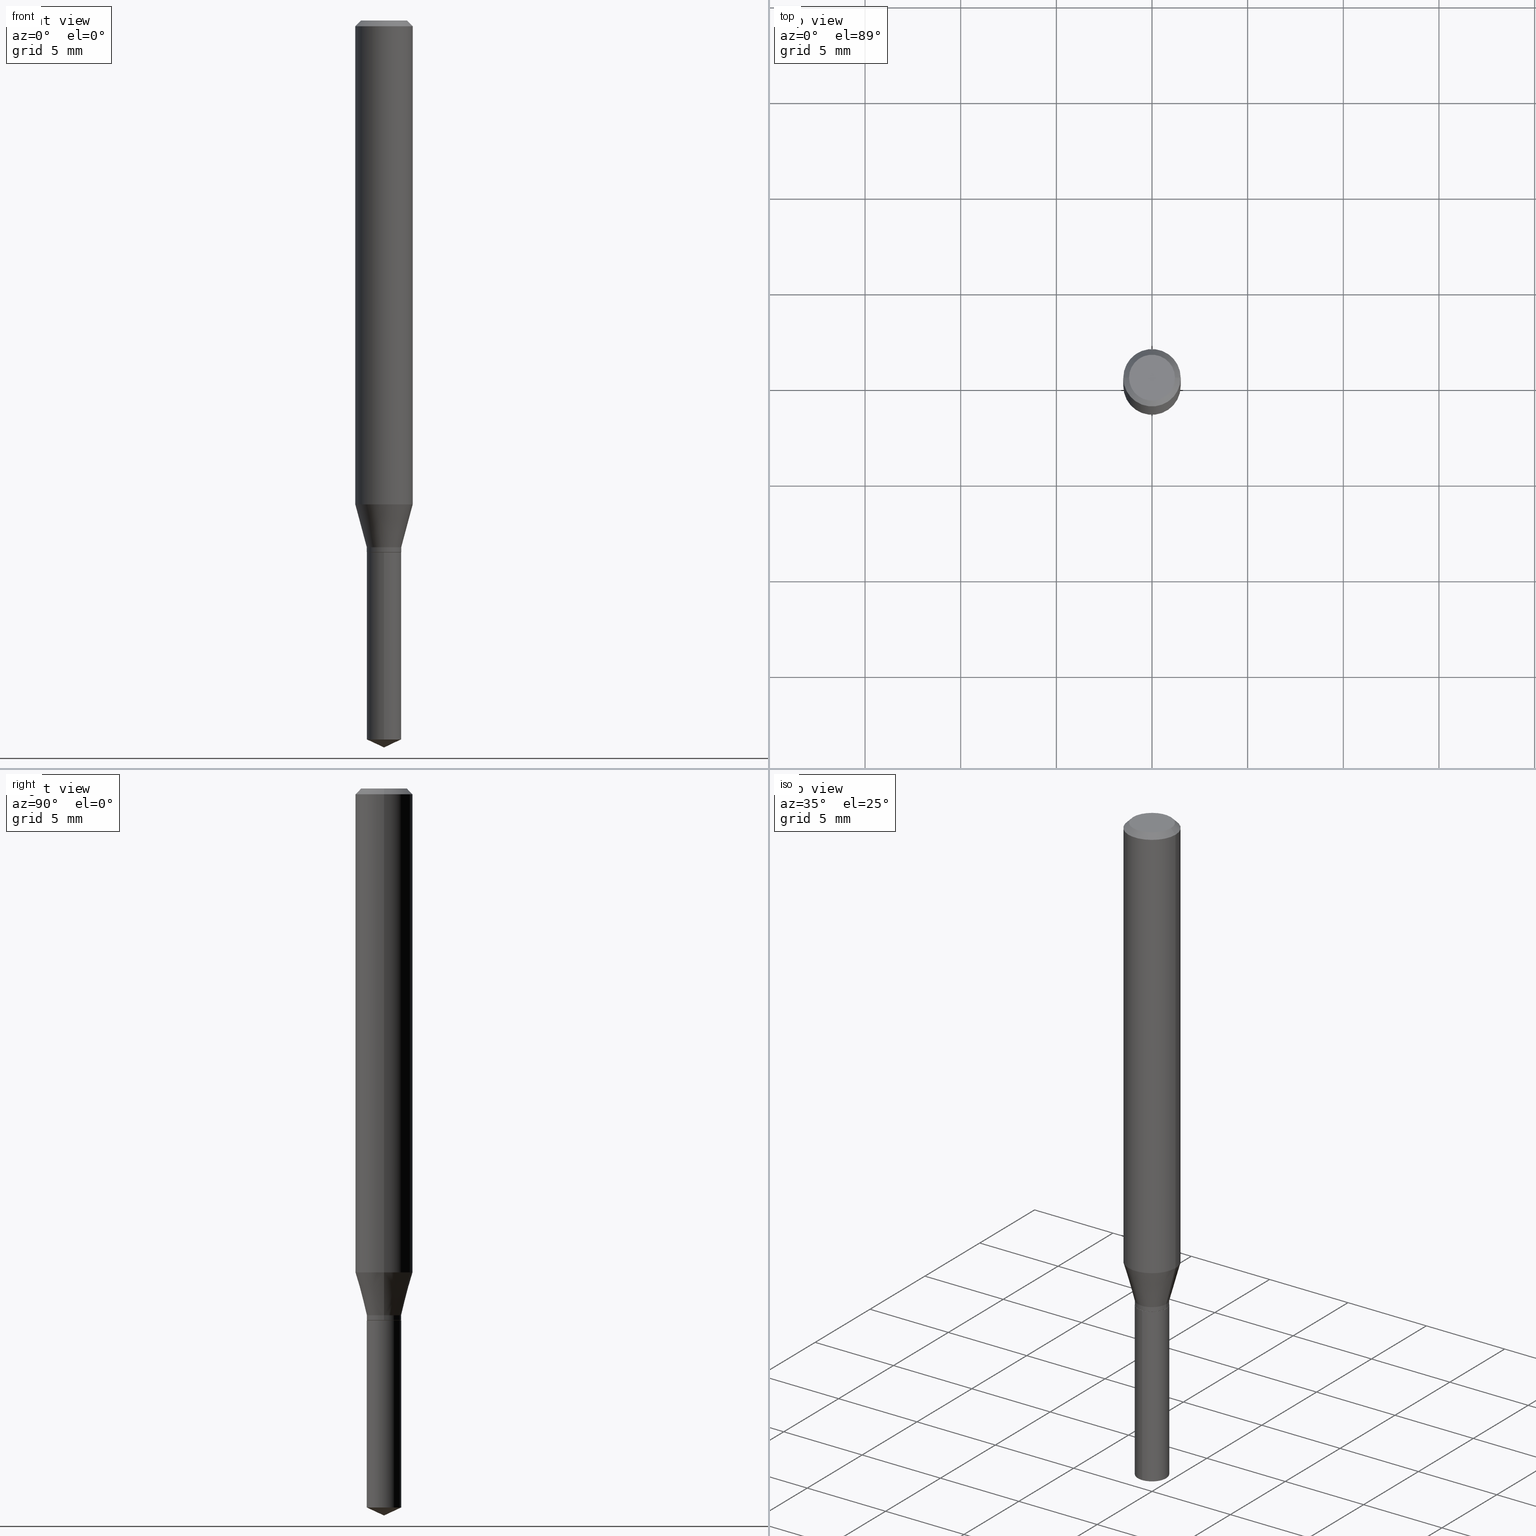
[diagram: canonical four-view strip — front | top / right | iso, engineering-drawing reading convention]
A machine part, canonical four-view strip (front | top / right | iso — engineering-drawing reading convention). The complete STEP part file that produces these views, byte-faithful:
ISO-10303-21;
HEADER;
FILE_DESCRIPTION (( 'STEP AP203' ),
    '1' );
FILE_NAME ('07576.STEP',
    '2024-04-23T23:12:12',
    ( '' ),
    ( '' ),
    'SwSTEP 2.0',
    'SolidWorks 2023',
    '' );
FILE_SCHEMA (( 'CONFIG_CONTROL_DESIGN' ));
ENDSEC;

DATA;
#1 = FACE_OUTER_BOUND ( 'NONE', #221, .T. ) ;
#2 = AXIS2_PLACEMENT_3D ( 'NONE', #101, #136, #131 ) ;
#3 = CONICAL_SURFACE ( 'NONE', #155, 0.03545000000000000234, 0.2617993877991498519 ) ;
#4 = PRODUCT ( '07576', '07576', '', ( #302 ) ) ;
#5 = DATE_AND_TIME ( #229, #186 ) ;
#6 = APPLICATION_PROTOCOL_DEFINITION ( 'international standard', 'config_control_design', 1994, #59 ) ;
#7 = EDGE_CURVE ( 'NONE', #326, #285, #112, .T. ) ;
#8 = EDGE_LOOP ( 'NONE', ( #472, #395, #432, #141 ) ) ;
#9 = AXIS2_PLACEMENT_3D ( 'NONE', #26, #404, #441 ) ;
#10 = EDGE_CURVE ( 'NONE', #330, #471, #254, .T. ) ;
#11 = CC_DESIGN_SECURITY_CLASSIFICATION ( #346, ( #210 ) ) ;
#12 = ORIENTED_EDGE ( 'NONE', *, *, #46, .F. ) ;
#13 = VERTEX_POINT ( 'NONE', #113 ) ;
#14 = ORIENTED_EDGE ( 'NONE', *, *, #277, .T. ) ;
#15 = LINE ( 'NONE', #202, #477 ) ;
#16 = CARTESIAN_POINT ( 'NONE',  ( 2.888098660104664204E-31, -4.123439461173780263E-17, -0.01181000000000007218 ) ) ;
#17 = FACE_OUTER_BOUND ( 'NONE', #138, .T. ) ;
#18 = FACE_OUTER_BOUND ( 'NONE', #470, .T. ) ;
#19 = ORIENTED_EDGE ( 'NONE', *, *, #122, .F. ) ;
#20 = CIRCLE ( 'NONE', #2, 0.03545000000000000234 ) ;
#21 = CARTESIAN_POINT ( 'NONE',  ( 3.658667988020872822E-29, -5.223602213574301462E-15, -1.496099999999999985 ) ) ;
#22 = LOCAL_TIME ( 19, 12, 12.00000000000000000, #357 ) ;
#23 = ORIENTED_EDGE ( 'NONE', *, *, #399, .F. ) ;
#24 = DIRECTION ( 'NONE',  ( 1.000000000000000000, -6.982962677686268288E-15, 0.000000000000000000 ) ) ;
#25 = LINE ( 'NONE', #392, #283 ) ;
#26 = CARTESIAN_POINT ( 'NONE',  ( 3.618241340762121039E-29, -5.165888150350425771E-15, -1.479569393518405329 ) ) ;
#27 = EDGE_CURVE ( 'NONE', #69, #376, #378, .T. ) ;
#28 = PLANE ( 'NONE',  #196 ) ;
#29 = CARTESIAN_POINT ( 'NONE',  ( 8.265746106709734507E-48, -1.180129479067563789E-33, -3.380025165646692144E-19 ) ) ;
#30 = CARTESIAN_POINT ( 'NONE',  ( 4.132873053354867254E-48, -5.900647395337818946E-34, -1.690012582823346072E-19 ) ) ;
#31 = ADVANCED_FACE ( 'NONE', ( #443 ), #251, .F. ) ;
#32 = CC_DESIGN_APPROVAL ( #164, ( #73 ) ) ;
#33 = DIRECTION ( 'NONE',  ( -2.445470214571802116E-29, 3.491479321953280158E-15, 1.000000000000000000 ) ) ;
#34 = CARTESIAN_POINT ( 'NONE',  ( 0.03495000000000000190, -4.065480870948958439E-15, -1.094500000000000028 ) ) ;
#35 = ORIENTED_EDGE ( 'NONE', *, *, #433, .T. ) ;
#36 = DIRECTION ( 'NONE',  ( 1.000000000000000000, -6.982962677686266711E-15, 0.000000000000000000 ) ) ;
#37 = CARTESIAN_POINT ( 'NONE',  ( 0.03545000000000000234, -4.031962650096063203E-15, -1.083899999999999864 ) ) ;
#38 = AXIS2_PLACEMENT_3D ( 'NONE', #455, #118, #305 ) ;
#39 = CC_DESIGN_APPROVAL ( #449, ( #346 ) ) ;
#40 =( LENGTH_UNIT ( ) NAMED_UNIT ( * ) SI_UNIT ( $, .METRE. ) );
#41 = ORIENTED_EDGE ( 'NONE', *, *, #329, .T. ) ;
#42 = CARTESIAN_POINT ( 'NONE',  ( 2.676565608369631794E-29, -3.821426325363822773E-15, -1.094499999999999806 ) ) ;
#43 = ADVANCED_FACE ( 'NONE', ( #367 ), #350, .T. ) ;
#44 = CC_DESIGN_DATE_AND_TIME_ASSIGNMENT ( #151, #424, ( #73 ) ) ;
#45 = ORIENTED_EDGE ( 'NONE', *, *, #339, .F. ) ;
#46 = EDGE_CURVE ( 'NONE', #273, #463, #464, .T. ) ;
#47 = CIRCLE ( 'NONE', #121, 0.05905000000000011628 ) ;
#48 = DATE_AND_TIME ( #380, #338 ) ;
#49 = CALENDAR_DATE ( 2024, 23, 4 ) ;
#50 = APPROVAL_STATUS ( 'not_yet_approved' ) ;
#51 = AXIS2_PLACEMENT_3D ( 'NONE', #413, #79, #147 ) ;
#52 = CARTESIAN_POINT ( 'NONE',  ( 2.435255552565086005E-29, -3.476899519466391057E-15, -0.9958236009413741208 ) ) ;
#53 = DIRECTION ( 'NONE',  ( -2.445470214571802116E-29, 3.491479321953280158E-15, 1.000000000000000000 ) ) ;
#54 = VERTEX_POINT ( 'NONE', #336 ) ;
#55 = CARTESIAN_POINT ( 'NONE',  ( 0.04724000000000000421, -3.852183633974369345E-16, -3.380025165621689721E-19 ) ) ;
#56 = EDGE_LOOP ( 'NONE', ( #368, #99 ) ) ;
#57 = DIRECTION ( 'NONE',  ( 2.445468806185136597E-29, -3.491481338843145583E-15, -1.000000000000000000 ) ) ;
#58 = DIRECTION ( 'NONE',  ( -2.445468806185136877E-29, 3.491481338843145188E-15, 1.000000000000000000 ) ) ;
#59 = APPLICATION_CONTEXT ( 'configuration controlled 3d designs of mechanical parts and assemblies' ) ;
#60 = AXIS2_PLACEMENT_3D ( 'NONE', #322, #159, #126 ) ;
#61 = LINE ( 'NONE', #328, #139 ) ;
#62 = CIRCLE ( 'NONE', #438, 0.05904999999999999832 ) ;
#63 = CARTESIAN_POINT ( 'NONE',  ( 0.05905000000000006077, -4.123439461173744764E-16, 2.879382386107503023E-30 ) ) ;
#64 = CC_DESIGN_PERSON_AND_ORGANIZATION_ASSIGNMENT ( #193, #235, ( #346 ) ) ;
#65 = DIRECTION ( 'NONE',  ( -1.000000000000000000, 6.982962677686265922E-15, -4.876176775795935793E-29 ) ) ;
#66 = DIRECTION ( 'NONE',  ( -1.000000000000000000, 6.982962677686266711E-15, 0.000000000000000000 ) ) ;
#67 = CARTESIAN_POINT ( 'NONE',  ( -0.03495000000000000190, -3.570442412041556297E-15, -1.094500000000000028 ) ) ;
#68 = EDGE_CURVE ( 'NONE', #225, #330, #106, .T. ) ;
#69 = VERTEX_POINT ( 'NONE', #67 ) ;
#70 = DIRECTION ( 'NONE',  ( -0.2588190451025211281, 5.211531920934547886E-15, 0.9659258262890679791 ) ) ;
#71 = CARTESIAN_POINT ( 'NONE',  ( -0.05905000000000006077, 4.195754854663395916E-16, -2.904631170795524694E-30 ) ) ;
#72 = CARTESIAN_POINT ( 'NONE',  ( 2.650643639024069224E-29, -3.784416623172084531E-15, -1.083899999999999864 ) ) ;
#73 = PRODUCT_DEFINITION ( 'UNKNOWN', '', #210, #108 ) ;
#74 = CARTESIAN_POINT ( 'NONE',  ( 2.676565608369632355E-29, -3.821426325363822773E-15, -1.094500000000000028 ) ) ;
#75 = CIRCLE ( 'NONE', #116, 0.03545000000000000234 ) ;
#76 = DIRECTION ( 'NONE',  ( -2.445468806185136597E-29, 3.491481338843145583E-15, 1.000000000000000000 ) ) ;
#77 = ORIENTED_EDGE ( 'NONE', *, *, #212, .T. ) ;
#78 = DIRECTION ( 'NONE',  ( -2.445468806185136597E-29, 3.491481338843145583E-15, 1.000000000000000000 ) ) ;
#79 = DIRECTION ( 'NONE',  ( 0.000000000000000000, 0.000000000000000000, 1.000000000000000000 ) ) ;
#80 = EDGE_LOOP ( 'NONE', ( #35, #476, #263, #355 ) ) ;
#81 = EDGE_CURVE ( 'NONE', #376, #330, #209, .T. ) ;
#82 = CARTESIAN_POINT ( 'NONE',  ( -0.03545000000000000234, 2.518873998269555325E-16, -1.743762489495364089E-30 ) ) ;
#83 = PLANE ( 'NONE',  #181 ) ;
#84 = ORIENTED_EDGE ( 'NONE', *, *, #212, .F. ) ;
#85 = AXIS2_PLACEMENT_3D ( 'NONE', #137, #264, #414 ) ;
#86 = CARTESIAN_POINT ( 'NONE',  ( 2.518873998269915736E-16, 0.03544999999999481899, -1.479569393518405329 ) ) ;
#87 = CARTESIAN_POINT ( 'NONE',  ( -0.05905000000000011628, -3.057324034000050775E-15, -0.9958236009413741208 ) ) ;
#88 = PERSON_AND_ORGANIZATION ( #143, #325 ) ;
#89 = COORDINATED_UNIVERSAL_TIME_OFFSET ( 5, 0, .BEHIND. ) ;
#90 = CIRCLE ( 'NONE', #458, 0.03545000000000000234 ) ;
#91 = ORIENTED_EDGE ( 'NONE', *, *, #429, .T. ) ;
#92 = CC_DESIGN_PERSON_AND_ORGANIZATION_ASSIGNMENT ( #388, #384, ( #210 ) ) ;
#93 = APPROVAL_STATUS ( 'not_yet_approved' ) ;
#94 = CARTESIAN_POINT ( 'NONE',  ( 0.03545000000000000234, -4.067226611618379153E-15, -1.093999999999999861 ) ) ;
#95 = PERSON_AND_ORGANIZATION ( #143, #325 ) ;
#96 = CONICAL_SURFACE ( 'NONE', #372, 0.03545000000000000234, 0.2617993877991498519 ) ;
#97 = VECTOR ( 'NONE', #243, 39.37007874015748143 ) ;
#98 = LINE ( 'NONE', #393, #97 ) ;
#99 = ORIENTED_EDGE ( 'NONE', *, *, #27, .F. ) ;
#100 = ORIENTED_EDGE ( 'NONE', *, *, #7, .T. ) ;
#101 = CARTESIAN_POINT ( 'NONE',  ( 2.675342873966538993E-29, -3.819680584694400481E-15, -1.093999999999999861 ) ) ;
#102 = ORIENTED_EDGE ( 'NONE', *, *, #160, .T. ) ;
#103 = CYLINDRICAL_SURFACE ( 'NONE', #261, 0.03545000000000000234 ) ;
#104 = ORIENTED_EDGE ( 'NONE', *, *, #290, .T. ) ;
#105 = DIRECTION ( 'NONE',  ( -2.445468806185136877E-29, 3.491481338843145188E-15, 1.000000000000000000 ) ) ;
#106 = CIRCLE ( 'NONE', #291, 0.03545000000000000234 ) ;
#107 = LOCAL_TIME ( 19, 12, 12.00000000000000000, #271 ) ;
#108 = DESIGN_CONTEXT ( 'detailed design', #59, 'design' ) ;
#109 = EDGE_CURVE ( 'NONE', #244, #471, #398, .T. ) ;
#110 = DIRECTION ( 'NONE',  ( -2.445468806185136597E-29, 3.491481338843145583E-15, 1.000000000000000000 ) ) ;
#111 = ORIENTED_EDGE ( 'NONE', *, *, #433, .F. ) ;
#112 = LINE ( 'NONE', #71, #217 ) ;
#113 = CARTESIAN_POINT ( 'NONE',  ( -0.04724000000000000421, 3.504923541997677355E-16, -3.380025165670481712E-19 ) ) ;
#114 = AXIS2_PLACEMENT_3D ( 'NONE', #204, #307, #265 ) ;
#115 = VERTEX_POINT ( 'NONE', #295 ) ;
#116 = AXIS2_PLACEMENT_3D ( 'NONE', #161, #317, #230 ) ;
#117 = DIRECTION ( 'NONE',  ( -2.445468806185136877E-29, 3.491481338843145188E-15, 1.000000000000000000 ) ) ;
#118 = DIRECTION ( 'NONE',  ( -2.445468806185136597E-29, 3.491481338843145583E-15, 1.000000000000000000 ) ) ;
#119 = ADVANCED_FACE ( 'NONE', ( #407 ), #381, .T. ) ;
#120 = DIRECTION ( 'NONE',  ( -2.445468806185136877E-29, 3.491481338843145188E-15, 1.000000000000000000 ) ) ;
#121 = AXIS2_PLACEMENT_3D ( 'NONE', #207, #78, #184 ) ;
#122 = EDGE_CURVE ( 'NONE', #127, #13, #356, .T. ) ;
#123 = APPROVAL_DATE_TIME ( #460, #164 ) ;
#124 = PERSON_AND_ORGANIZATION_ROLE ( 'creator' ) ;
#125 = APPROVAL_PERSON_ORGANIZATION ( #278, #449, #194 ) ;
#126 = DIRECTION ( 'NONE',  ( 1.000000000000000000, -6.982962677686266711E-15, 4.876176775795935793E-29 ) ) ;
#127 = VERTEX_POINT ( 'NONE', #55 ) ;
#128 = ORIENTED_EDGE ( 'NONE', *, *, #456, .T. ) ;
#129 = ORIENTED_EDGE ( 'NONE', *, *, #152, .T. ) ;
#130 = VERTEX_POINT ( 'NONE', #21 ) ;
#131 = DIRECTION ( 'NONE',  ( 1.000000000000000000, -6.982962677686268288E-15, 0.000000000000000000 ) ) ;
#132 = EDGE_LOOP ( 'NONE', ( #19, #77, #128, #304 ) ) ;
#133 = VECTOR ( 'NONE', #117, 39.37007874015748143 ) ;
#134 = DIRECTION ( 'NONE',  ( -2.445468806185136597E-29, 3.491481338843145583E-15, 1.000000000000000000 ) ) ;
#135 = EDGE_LOOP ( 'NONE', ( #163, #41 ) ) ;
#136 = DIRECTION ( 'NONE',  ( -2.445468806185136597E-29, 3.491481338843145583E-15, 1.000000000000000000 ) ) ;
#137 = CARTESIAN_POINT ( 'NONE',  ( 2.676565608369631794E-29, -3.821426325363822773E-15, -1.094499999999999806 ) ) ;
#138 = EDGE_LOOP ( 'NONE', ( #23, #255, #91, #488 ) ) ;
#139 = VECTOR ( 'NONE', #324, 39.37007874015748143 ) ;
#140 = DIRECTION ( 'NONE',  ( 1.000000000000000000, -6.982962677686268288E-15, 0.000000000000000000 ) ) ;
#141 = ORIENTED_EDGE ( 'NONE', *, *, #68, .F. ) ;
#142 = DIRECTION ( 'NONE',  ( -2.445468806185136597E-29, 3.491481338843145583E-15, 1.000000000000000000 ) ) ;
#143 = PERSON ( 'UNSPECIFIED', 'UNSPECIFIED', 'UNSPECIFIED', ('UNSPECIFIED'), ('UNSPECIFIED'), ('UNSPECIFIED') ) ;
#144 = CARTESIAN_POINT ( 'NONE',  ( 0.03545000000000000234, -2.475460269239781793E-16, 1.728604667019659440E-30 ) ) ;
#145 = AXIS2_PLACEMENT_3D ( 'NONE', #363, #172, #247 ) ;
#146 = ORIENTED_EDGE ( 'NONE', *, *, #415, .F. ) ;
#147 = DIRECTION ( 'NONE',  ( 1.000000000000000000, 0.000000000000000000, 0.000000000000000000 ) ) ;
#148 = EDGE_CURVE ( 'NONE', #130, #273, #478, .T. ) ;
#149 = VERTEX_POINT ( 'NONE', #473 ) ;
#150 = ADVANCED_FACE ( 'NONE', ( #205 ), #275, .T. ) ;
#151 = DATE_AND_TIME ( #314, #107 ) ;
#152 = EDGE_CURVE ( 'NONE', #13, #285, #98, .T. ) ;
#153 = CONICAL_SURFACE ( 'NONE', #241, 0.05904999999999999832, 0.7853981633974452814 ) ;
#154 = DIRECTION ( 'NONE',  ( -2.445470214571802116E-29, 3.491479321953280158E-15, 1.000000000000000000 ) ) ;
#155 = AXIS2_PLACEMENT_3D ( 'NONE', #469, #240, #284 ) ;
#156 = DIRECTION ( 'NONE',  ( -6.982962677686265922E-15, -1.000000000000000000, 3.853100132107564390E-15 ) ) ;
#157 = DIRECTION ( 'NONE',  ( 1.000000000000000000, -6.982962677686266711E-15, 4.876185090822587894E-29 ) ) ;
#158 = PERSON_AND_ORGANIZATION_ROLE ( 'design_owner' ) ;
#159 = DIRECTION ( 'NONE',  ( -2.445468806185136597E-29, 3.491481338843145583E-15, 1.000000000000000000 ) ) ;
#160 = EDGE_CURVE ( 'NONE', #330, #225, #20, .T. ) ;
#161 = CARTESIAN_POINT ( 'NONE',  ( 2.676565608369631794E-29, -3.821426325363822773E-15, -1.094499999999999806 ) ) ;
#162 = VECTOR ( 'NONE', #239, 39.37007874015748143 ) ;
#163 = ORIENTED_EDGE ( 'NONE', *, *, #347, .T. ) ;
#164 = APPROVAL ( #50, 'UNSPECIFIED' ) ;
#165 = ORIENTED_EDGE ( 'NONE', *, *, #148, .F. ) ;
#166 = DIRECTION ( 'NONE',  ( -1.000000000000000000, 6.982962677686266711E-15, 0.000000000000000000 ) ) ;
#167 = DIRECTION ( 'NONE',  ( -2.445468806185136597E-29, 3.491481338843145583E-15, 1.000000000000000000 ) ) ;
#168 = CARTESIAN_POINT ( 'NONE',  ( 3.658664905062460986E-29, -5.223606628546217219E-15, -1.496099999999999985 ) ) ;
#169 = AXIS2_PLACEMENT_3D ( 'NONE', #214, #486, #140 ) ;
#170 = ORIENTED_EDGE ( 'NONE', *, *, #248, .T. ) ;
#171 = AXIS2_PLACEMENT_3D ( 'NONE', #306, #425, #394 ) ;
#172 = DIRECTION ( 'NONE',  ( -2.445468806185136597E-29, 3.491481338843145583E-15, 1.000000000000000000 ) ) ;
#173 = ORIENTED_EDGE ( 'NONE', *, *, #456, .F. ) ;
#174 = ORIENTED_EDGE ( 'NONE', *, *, #385, .T. ) ;
#175 = FACE_OUTER_BOUND ( 'NONE', #387, .T. ) ;
#176 = CARTESIAN_POINT ( 'NONE',  ( -9.261968845786000133E-28, 1.322362114038720264E-13, 37.87397874015748300 ) ) ;
#177 = DIRECTION ( 'NONE',  ( 2.445470214571801836E-29, -3.491479321953280158E-15, -1.000000000000000000 ) ) ;
#178 = DIRECTION ( 'NONE',  ( -2.445468806185136597E-29, 3.491481338843145583E-15, 1.000000000000000000 ) ) ;
#179 = DIRECTION ( 'NONE',  ( -2.445468806185136597E-29, 3.491481338843145583E-15, 1.000000000000000000 ) ) ;
#180 = CONICAL_SURFACE ( 'NONE', #423, 0.05904999999999999832, 0.7853981633974452814 ) ;
#181 = AXIS2_PLACEMENT_3D ( 'NONE', #268, #377, #260 ) ;
#182 = DIRECTION ( 'NONE',  ( -6.982962677686269077E-15, -1.000000000000000000, 3.520397390770426654E-15 ) ) ;
#183 = DIRECTION ( 'NONE',  ( -2.445468806185136597E-29, 3.491481338843145583E-15, 1.000000000000000000 ) ) ;
#184 = DIRECTION ( 'NONE',  ( 1.000000000000000000, -6.982962677686266711E-15, 0.000000000000000000 ) ) ;
#185 = APPLICATION_PROTOCOL_DEFINITION ( 'international standard', 'config_control_design', 1994, #282 ) ;
#186 = LOCAL_TIME ( 19, 12, 12.00000000000000000, #309 ) ;
#187 = LINE ( 'NONE', #226, #465 ) ;
#188 = EDGE_CURVE ( 'NONE', #273, #54, #61, .T. ) ;
#189 = SHAPE_DEFINITION_REPRESENTATION ( #417, #353 ) ;
#190 = AXIS2_PLACEMENT_3D ( 'NONE', #176, #292, #370 ) ;
#191 = AXIS2_PLACEMENT_3D ( 'NONE', #29, #178, #334 ) ;
#192 = DATE_TIME_ROLE ( 'classification_date' ) ;
#193 = PERSON_AND_ORGANIZATION ( #143, #325 ) ;
#194 = APPROVAL_ROLE ( '' ) ;
#195 = APPROVAL_ROLE ( '' ) ;
#196 = AXIS2_PLACEMENT_3D ( 'NONE', #444, #177, #447 ) ;
#197 = ADVANCED_FACE ( 'NONE', ( #289 ), #281, .T. ) ;
#198 = CARTESIAN_POINT ( 'NONE',  ( -0.03545000000000000234, -3.550161204106286727E-15, -1.093999999999999861 ) ) ;
#199 = DIRECTION ( 'NONE',  ( -6.982962677686265922E-15, -1.000000000000000000, 0.000000000000000000 ) ) ;
#200 = EDGE_LOOP ( 'NONE', ( #315, #397, #483, #280 ) ) ;
#201 = ORIENTED_EDGE ( 'NONE', *, *, #10, .T. ) ;
#202 = CARTESIAN_POINT ( 'NONE',  ( -0.03495000000000000190, -3.573091639215668287E-15, -1.094500000000000028 ) ) ;
#203 = EDGE_CURVE ( 'NONE', #69, #225, #15, .T. ) ;
#204 = CARTESIAN_POINT ( 'NONE',  ( 0.000000000000000000, 0.000000000000000000, 0.000000000000000000 ) ) ;
#205 = FACE_OUTER_BOUND ( 'NONE', #200, .T. ) ;
#206 = UNCERTAINTY_MEASURE_WITH_UNIT (LENGTH_MEASURE( 1.000000000000000082E-05 ), #223, 'distance_accuracy_value', 'NONE');
#207 = CARTESIAN_POINT ( 'NONE',  ( 2.435255552565086005E-29, -3.476899519466391057E-15, -0.9958236009413741208 ) ) ;
#208 = AXIS2_PLACEMENT_3D ( 'NONE', #52, #442, #361 ) ;
#209 = LINE ( 'NONE', #213, #364 ) ;
#210 = PRODUCT_DEFINITION_FORMATION_WITH_SPECIFIED_SOURCE ( 'ANY', '', #4, .NOT_KNOWN. ) ;
#211 = DIRECTION ( 'NONE',  ( 0.7071067811865453523, -7.319954787623248157E-15, -0.7071067811865496822 ) ) ;
#212 = EDGE_CURVE ( 'NONE', #127, #149, #25, .T. ) ;
#213 = CARTESIAN_POINT ( 'NONE',  ( 0.03495000000000000190, -4.065480870948958439E-15, -1.094500000000000028 ) ) ;
#214 = CARTESIAN_POINT ( 'NONE',  ( 2.650643639024069224E-29, -3.784416623172084531E-15, -1.083899999999999864 ) ) ;
#215 = CYLINDRICAL_SURFACE ( 'NONE', #382, 0.03545000000000000234 ) ;
#216 = DIRECTION ( 'NONE',  ( 1.000000000000000000, -6.982962677686268288E-15, 0.000000000000000000 ) ) ;
#217 = VECTOR ( 'NONE', #105, 39.37007874015748143 ) ;
#218 = DIRECTION ( 'NONE',  ( 2.445468806185136597E-29, -3.491481338843145583E-15, -1.000000000000000000 ) ) ;
#219 = DIRECTION ( 'NONE',  ( 1.000000000000000000, -6.982962677686267499E-15, 0.000000000000000000 ) ) ;
#220 = EDGE_CURVE ( 'NONE', #115, #326, #428, .T. ) ;
#221 = EDGE_LOOP ( 'NONE', ( #454, #327, #201, #451 ) ) ;
#222 = CARTESIAN_POINT ( 'NONE',  ( -2.475460269239418917E-16, -0.03545000000000515794, -1.479569393518405329 ) ) ;
#223 =( CONVERSION_BASED_UNIT ( 'INCH', #296 ) LENGTH_UNIT ( ) NAMED_UNIT ( #461 ) );
#224 = ORIENTED_EDGE ( 'NONE', *, *, #188, .F. ) ;
#225 = VERTEX_POINT ( 'NONE', #198 ) ;
#226 = CARTESIAN_POINT ( 'NONE',  ( 2.518873998269822552E-16, 0.03544999999999617901, -1.094500000000000028 ) ) ;
#227 = ADVANCED_FACE ( 'NONE', ( #18 ), #103, .T. ) ;
#228 = FACE_OUTER_BOUND ( 'NONE', #8, .T. ) ;
#229 = CALENDAR_DATE ( 2024, 23, 4 ) ;
#230 = DIRECTION ( 'NONE',  ( -6.982962677686265922E-15, -1.000000000000000000, 3.853100132107564390E-15 ) ) ;
#231 = COORDINATED_UNIVERSAL_TIME_OFFSET ( 5, 0, .BEHIND. ) ;
#232 = AXIS2_PLACEMENT_3D ( 'NONE', #30, #401, #65 ) ;
#233 = APPROVAL_PERSON_ORGANIZATION ( #313, #164, #195 ) ;
#234 = ADVANCED_FACE ( 'NONE', ( #440 ), #180, .T. ) ;
#235 = PERSON_AND_ORGANIZATION_ROLE ( 'classification_officer' ) ;
#236 = ORIENTED_EDGE ( 'NONE', *, *, #220, .T. ) ;
#237 = DATE_AND_TIME ( #49, #400 ) ;
#238 = ADVANCED_FACE ( 'NONE', ( #175 ), #390, .T. ) ;
#239 = DIRECTION ( 'NONE',  ( -6.328713451373384367E-15, -0.9063077870366504918, 0.4226182617406983866 ) ) ;
#240 = DIRECTION ( 'NONE',  ( -2.445468806185136597E-29, 3.491481338843145583E-15, 1.000000000000000000 ) ) ;
#241 = AXIS2_PLACEMENT_3D ( 'NONE', #258, #218, #66 ) ;
#242 = CC_DESIGN_PERSON_AND_ORGANIZATION_ASSIGNMENT ( #430, #158, ( #4 ) ) ;
#243 = DIRECTION ( 'NONE',  ( -0.7071067811865453523, 2.468850131082234184E-15, -0.7071067811865496822 ) ) ;
#244 = VERTEX_POINT ( 'NONE', #276 ) ;
#245 = CARTESIAN_POINT ( 'NONE',  ( 2.888098660104664204E-31, -4.123439461173780263E-17, -0.01181000000000007218 ) ) ;
#246 = EDGE_LOOP ( 'NONE', ( #174, #389 ) ) ;
#247 = DIRECTION ( 'NONE',  ( 1.000000000000000000, -6.982962677686266711E-15, 4.876176775795935793E-29 ) ) ;
#248 = EDGE_CURVE ( 'NONE', #326, #115, #47, .T. ) ;
#249 = FACE_OUTER_BOUND ( 'NONE', #480, .T. ) ;
#250 = CIRCLE ( 'NONE', #38, 0.05904999999999999832 ) ;
#251 = PLANE ( 'NONE',  #232 ) ;
#252 = EDGE_LOOP ( 'NONE', ( #165, #474, #12 ) ) ;
#253 = CC_DESIGN_APPROVAL ( #383, ( #210 ) ) ;
#254 = LINE ( 'NONE', #144, #310 ) ;
#255 = ORIENTED_EDGE ( 'NONE', *, *, #109, .T. ) ;
#256 = CARTESIAN_POINT ( 'NONE',  ( -0.03545000000000000234, -3.532529223345129146E-15, -1.083899999999999864 ) ) ;
#257 = CARTESIAN_POINT ( 'NONE',  ( 2.675342873966538993E-29, -3.819680584694400481E-15, -1.093999999999999861 ) ) ;
#258 = CARTESIAN_POINT ( 'NONE',  ( 2.888098660104664204E-31, -4.123439461173780263E-17, -0.01181000000000007218 ) ) ;
#259 = CARTESIAN_POINT ( 'NONE',  ( 2.676565608369632355E-29, -3.821426325363822773E-15, -1.094500000000000028 ) ) ;
#260 = DIRECTION ( 'NONE',  ( 1.000000000000000000, -6.982962677686265922E-15, 4.876176775795935793E-29 ) ) ;
#261 = AXIS2_PLACEMENT_3D ( 'NONE', #436, #134, #369 ) ;
#262 = AXIS2_PLACEMENT_3D ( 'NONE', #484, #53, #199 ) ;
#263 = ORIENTED_EDGE ( 'NONE', *, *, #220, .F. ) ;
#264 = DIRECTION ( 'NONE',  ( -2.445470214571802116E-29, 3.491479321953280158E-15, 1.000000000000000000 ) ) ;
#265 = DIRECTION ( 'NONE',  ( 1.000000000000000000, -6.982962677686266711E-15, 4.876176775795935793E-29 ) ) ;
#266 = EDGE_LOOP ( 'NONE', ( #287, #323, #375, #362 ) ) ;
#267 = EDGE_CURVE ( 'NONE', #376, #69, #345, .T. ) ;
#268 = CARTESIAN_POINT ( 'NONE',  ( -3.104317707093147810E-30, -8.098976581537694552E-15, -1.094500000000000028 ) ) ;
#269 = AXIS2_PLACEMENT_3D ( 'NONE', #340, #142, #157 ) ;
#270 = CC_DESIGN_DATE_AND_TIME_ASSIGNMENT ( #48, #192, ( #346 ) ) ;
#271 = COORDINATED_UNIVERSAL_TIME_OFFSET ( 5, 0, .BEHIND. ) ;
#272 = PERSON_AND_ORGANIZATION_ROLE ( 'creator' ) ;
#273 = VERTEX_POINT ( 'NONE', #222 ) ;
#274 = ADVANCED_FACE ( 'NONE', ( #490 ), #96, .T. ) ;
#275 = CONICAL_SURFACE ( 'NONE', #435, 0.03495000000000000190, 0.7853981633972775267 ) ;
#276 = CARTESIAN_POINT ( 'NONE',  ( -0.03545000000000000234, -3.550161204106286727E-15, -1.083899999999999864 ) ) ;
#277 = EDGE_CURVE ( 'NONE', #285, #149, #250, .T. ) ;
#278 = PERSON_AND_ORGANIZATION ( #143, #325 ) ;
#279 = ORIENTED_EDGE ( 'NONE', *, *, #385, .F. ) ;
#280 = ORIENTED_EDGE ( 'NONE', *, *, #81, .F. ) ;
#281 = CYLINDRICAL_SURFACE ( 'NONE', #145, 0.05905000000000006077 ) ;
#282 = APPLICATION_CONTEXT ( 'configuration controlled 3d designs of mechanical parts and assemblies' ) ;
#283 = VECTOR ( 'NONE', #211, 39.37007874015748143 ) ;
#284 = DIRECTION ( 'NONE',  ( 1.000000000000000000, -6.982962677686268288E-15, 0.000000000000000000 ) ) ;
#285 = VERTEX_POINT ( 'NONE', #420 ) ;
#286 = DIRECTION ( 'NONE',  ( 1.000000000000000000, -6.982962677686267499E-15, 0.000000000000000000 ) ) ;
#287 = ORIENTED_EDGE ( 'NONE', *, *, #485, .F. ) ;
#288 = EDGE_LOOP ( 'NONE', ( #45, #402, #427 ) ) ;
#289 = FACE_OUTER_BOUND ( 'NONE', #448, .T. ) ;
#290 = EDGE_CURVE ( 'NONE', #225, #244, #406, .T. ) ;
#291 = AXIS2_PLACEMENT_3D ( 'NONE', #257, #183, #216 ) ;
#292 = DIRECTION ( 'NONE',  ( -2.445470214571802116E-29, 3.491479321953280158E-15, 1.000000000000000000 ) ) ;
#293 = ORIENTED_EDGE ( 'NONE', *, *, #10, .F. ) ;
#294 = LINE ( 'NONE', #256, #311 ) ;
#295 = CARTESIAN_POINT ( 'NONE',  ( 0.05905000000000011628, -3.889243465583765977E-15, -0.9958236009413741208 ) ) ;
#296 = LENGTH_MEASURE_WITH_UNIT ( LENGTH_MEASURE( 0.02539999999999999897 ), #40 );
#297 = ADVANCED_FACE ( 'NONE', ( #1 ), #333, .T. ) ;
#298 = DIRECTION ( 'NONE',  ( 1.000000000000000000, -6.982962677686267499E-15, 0.000000000000000000 ) ) ;
#299 = AXIS2_PLACEMENT_3D ( 'NONE', #259, #179, #219 ) ;
#300 = APPROVAL_PERSON_ORGANIZATION ( #88, #383, #386 ) ;
#301 = CARTESIAN_POINT ( 'NONE',  ( 2.650643639024069224E-29, -3.784416623172084531E-15, -1.083899999999999864 ) ) ;
#302 = MECHANICAL_CONTEXT ( 'NONE', #282, 'mechanical' ) ;
#303 = ADVANCED_FACE ( 'NONE', ( #228 ), #446, .T. ) ;
#304 = ORIENTED_EDGE ( 'NONE', *, *, #152, .F. ) ;
#305 = DIRECTION ( 'NONE',  ( 1.000000000000000000, -6.982962677686266711E-15, 0.000000000000000000 ) ) ;
#306 = CARTESIAN_POINT ( 'NONE',  ( 2.676565608369631794E-29, -3.821426325363822773E-15, -1.094499999999999806 ) ) ;
#307 = DIRECTION ( 'NONE',  ( -2.445468806185136597E-29, 3.491481338843145583E-15, 1.000000000000000000 ) ) ;
#308 = CARTESIAN_POINT ( 'NONE',  ( 2.676565608369632355E-29, -3.821426325363822773E-15, -1.094500000000000028 ) ) ;
#309 = COORDINATED_UNIVERSAL_TIME_OFFSET ( 5, 0, .BEHIND. ) ;
#310 = VECTOR ( 'NONE', #58, 39.37007874015748143 ) ;
#311 = VECTOR ( 'NONE', #70, 39.37007874015748854 ) ;
#312 = FACE_OUTER_BOUND ( 'NONE', #266, .T. ) ;
#313 = PERSON_AND_ORGANIZATION ( #143, #325 ) ;
#314 = CALENDAR_DATE ( 2024, 23, 4 ) ;
#315 = ORIENTED_EDGE ( 'NONE', *, *, #267, .T. ) ;
#316 = CC_DESIGN_PERSON_AND_ORGANIZATION_ASSIGNMENT ( #95, #124, ( #73 ) ) ;
#317 = DIRECTION ( 'NONE',  ( -2.445470214571802116E-29, 3.491479321953280158E-15, 1.000000000000000000 ) ) ;
#318 = VECTOR ( 'NONE', #120, 39.37007874015748143 ) ;
#319 = APPROVAL_STATUS ( 'not_yet_approved' ) ;
#320 = LINE ( 'NONE', #379, #351 ) ;
#321 = EDGE_LOOP ( 'NONE', ( #84, #279, #129, #14 ) ) ;
#322 = CARTESIAN_POINT ( 'NONE',  ( 0.000000000000000000, 0.000000000000000000, 0.000000000000000000 ) ) ;
#323 = ORIENTED_EDGE ( 'NONE', *, *, #445, .T. ) ;
#324 = DIRECTION ( 'NONE',  ( -2.445470214571802396E-29, 3.491479321953280158E-15, 1.000000000000000000 ) ) ;
#325 = ORGANIZATION ( 'UNSPECIFIED', 'UNSPECIFIED', '' ) ;
#326 = VERTEX_POINT ( 'NONE', #87 ) ;
#327 = ORIENTED_EDGE ( 'NONE', *, *, #68, .T. ) ;
#328 = CARTESIAN_POINT ( 'NONE',  ( -2.475460269239513581E-16, -0.03545000000000382567, -1.094499999999999806 ) ) ;
#329 = EDGE_CURVE ( 'NONE', #434, #54, #75, .T. ) ;
#330 = VERTEX_POINT ( 'NONE', #94 ) ;
#331 = CARTESIAN_POINT ( 'NONE',  ( 2.518873998269917215E-16, 0.03544999999999617901, -1.094500000000000028 ) ) ;
#332 = LINE ( 'NONE', #63, #133 ) ;
#333 = CYLINDRICAL_SURFACE ( 'NONE', #114, 0.03545000000000000234 ) ;
#334 = DIRECTION ( 'NONE',  ( 1.000000000000000000, -6.982962677686266711E-15, 4.876185090822587894E-29 ) ) ;
#335 = AXIS2_PLACEMENT_3D ( 'NONE', #308, #76, #344 ) ;
#336 = CARTESIAN_POINT ( 'NONE',  ( -2.475460269239513581E-16, -0.03545000000000382567, -1.094499999999999806 ) ) ;
#337 = FACE_OUTER_BOUND ( 'NONE', #135, .T. ) ;
#338 = LOCAL_TIME ( 19, 12, 12.00000000000000000, #89 ) ;
#339 = EDGE_CURVE ( 'NONE', #130, #463, #320, .T. ) ;
#340 = CARTESIAN_POINT ( 'NONE',  ( 8.265746106709734507E-48, -1.180129479067563789E-33, -3.380025165646692144E-19 ) ) ;
#341 =( NAMED_UNIT ( * ) PLANE_ANGLE_UNIT ( ) SI_UNIT ( $, .RADIAN. ) );
#342 = ORIENTED_EDGE ( 'NONE', *, *, #277, .F. ) ;
#343 = DIRECTION ( 'NONE',  ( -2.445468806185136597E-29, 3.491481338843145583E-15, 1.000000000000000000 ) ) ;
#344 = DIRECTION ( 'NONE',  ( 1.000000000000000000, -6.982962677686267499E-15, 0.000000000000000000 ) ) ;
#345 = CIRCLE ( 'NONE', #335, 0.03495000000000000190 ) ;
#346 = SECURITY_CLASSIFICATION ( '', '', #462 ) ;
#347 = EDGE_CURVE ( 'NONE', #54, #434, #437, .T. ) ;
#348 = ADVANCED_FACE ( 'NONE', ( #312 ), #459, .T. ) ;
#349 = PERSON_AND_ORGANIZATION ( #143, #325 ) ;
#350 = CONICAL_SURFACE ( 'NONE', #190, 84.42940631927498885, 1.134464013796318893 ) ;
#351 = VECTOR ( 'NONE', #352, 39.37007874015748143 ) ;
#352 = DIRECTION ( 'NONE',  ( 6.439704144417037453E-15, 0.9063077870366533784, 0.4226182617406920583 ) ) ;
#353 = ADVANCED_BREP_SHAPE_REPRESENTATION ( '07576', ( #475, #481, #51 ), #391 ) ;
#354 = CALENDAR_DATE ( 2024, 23, 4 ) ;
#355 = ORIENTED_EDGE ( 'NONE', *, *, #429, .F. ) ;
#356 = CIRCLE ( 'NONE', #269, 0.04724000000000000421 ) ;
#357 = COORDINATED_UNIVERSAL_TIME_OFFSET ( 5, 0, .BEHIND. ) ;
#358 = ORIENTED_EDGE ( 'NONE', *, *, #347, .F. ) ;
#359 = CARTESIAN_POINT ( 'NONE',  ( 2.676565608369632355E-29, -3.821426325363822773E-15, -1.094500000000000028 ) ) ;
#360 = ORIENTED_EDGE ( 'NONE', *, *, #7, .F. ) ;
#361 = DIRECTION ( 'NONE',  ( 1.000000000000000000, -6.982962677686266711E-15, 0.000000000000000000 ) ) ;
#362 = ORIENTED_EDGE ( 'NONE', *, *, #329, .F. ) ;
#363 = CARTESIAN_POINT ( 'NONE',  ( 0.000000000000000000, 0.000000000000000000, 0.000000000000000000 ) ) ;
#364 = VECTOR ( 'NONE', #487, 39.37007874015748143 ) ;
#365 = ADVANCED_FACE ( 'NONE', ( #17 ), #3, .T. ) ;
#366 = AXIS2_PLACEMENT_3D ( 'NONE', #74, #343, #298 ) ;
#367 = FACE_OUTER_BOUND ( 'NONE', #288, .T. ) ;
#368 = ORIENTED_EDGE ( 'NONE', *, *, #267, .F. ) ;
#369 = DIRECTION ( 'NONE',  ( 1.000000000000000000, -6.982962677686266711E-15, 4.876176775795935793E-29 ) ) ;
#370 = DIRECTION ( 'NONE',  ( -6.982962677686269077E-15, -1.000000000000000000, 3.520397390770426654E-15 ) ) ;
#371 = ADVANCED_FACE ( 'NONE', ( #439 ), #153, .T. ) ;
#372 = AXIS2_PLACEMENT_3D ( 'NONE', #301, #374, #457 ) ;
#373 = CARTESIAN_POINT ( 'NONE',  ( -9.261968845786000133E-28, 1.322362114038720264E-13, 37.87397874015748300 ) ) ;
#374 = DIRECTION ( 'NONE',  ( -2.445468806185136597E-29, 3.491481338843145583E-15, 1.000000000000000000 ) ) ;
#375 = ORIENTED_EDGE ( 'NONE', *, *, #188, .T. ) ;
#376 = VERTEX_POINT ( 'NONE', #34 ) ;
#377 = DIRECTION ( 'NONE',  ( -2.438088387897960049E-29, 3.491481338843145188E-15, 1.000000000000000000 ) ) ;
#378 = CIRCLE ( 'NONE', #299, 0.03495000000000000190 ) ;
#379 = CARTESIAN_POINT ( 'NONE',  ( 3.658668015054778287E-29, -5.223602213574301462E-15, -1.496099999999999985 ) ) ;
#380 = CALENDAR_DATE ( 2024, 23, 4 ) ;
#381 = CONICAL_SURFACE ( 'NONE', #452, 84.42940631927498885, 1.134464013796318893 ) ;
#382 = AXIS2_PLACEMENT_3D ( 'NONE', #42, #154, #156 ) ;
#383 = APPROVAL ( #319, 'UNSPECIFIED' ) ;
#384 = PERSON_AND_ORGANIZATION_ROLE ( 'design_supplier' ) ;
#385 = EDGE_CURVE ( 'NONE', #13, #127, #411, .T. ) ;
#386 = APPROVAL_ROLE ( '' ) ;
#387 = EDGE_LOOP ( 'NONE', ( #360, #170, #405, #342 ) ) ;
#388 = PERSON_AND_ORGANIZATION ( #143, #325 ) ;
#389 = ORIENTED_EDGE ( 'NONE', *, *, #122, .T. ) ;
#390 = CYLINDRICAL_SURFACE ( 'NONE', #60, 0.05905000000000006077 ) ;
#391 =( GEOMETRIC_REPRESENTATION_CONTEXT ( 3 ) GLOBAL_UNCERTAINTY_ASSIGNED_CONTEXT ( ( #206 ) ) GLOBAL_UNIT_ASSIGNED_CONTEXT ( ( #223, #341, #408 ) ) REPRESENTATION_CONTEXT ( 'NONE', 'WORKASPACE' ) );
#392 = CARTESIAN_POINT ( 'NONE',  ( 0.05904999999999999832, -4.463468013801466955E-16, -0.01181000000000007218 ) ) ;
#393 = CARTESIAN_POINT ( 'NONE',  ( -0.05904999999999999832, 3.711095515056362547E-16, -0.01181000000000007218 ) ) ;
#394 = DIRECTION ( 'NONE',  ( -6.982962677686265922E-15, -1.000000000000000000, 3.853100132107564390E-15 ) ) ;
#395 = ORIENTED_EDGE ( 'NONE', *, *, #27, .T. ) ;
#396 = DIRECTION ( 'NONE',  ( -2.445468806185136597E-29, 3.491481338843145583E-15, 1.000000000000000000 ) ) ;
#397 = ORIENTED_EDGE ( 'NONE', *, *, #203, .T. ) ;
#398 = CIRCLE ( 'NONE', #169, 0.03545000000000000234 ) ;
#399 = EDGE_CURVE ( 'NONE', #244, #326, #294, .T. ) ;
#400 = LOCAL_TIME ( 19, 12, 12.00000000000000000, #231 ) ;
#401 = DIRECTION ( 'NONE',  ( 2.438088387897960049E-29, -3.491481338843145188E-15, -1.000000000000000000 ) ) ;
#402 = ORIENTED_EDGE ( 'NONE', *, *, #148, .T. ) ;
#403 = CARTESIAN_POINT ( 'NONE',  ( 0.03545000000000000234, -4.031962650096063203E-15, -1.083899999999999864 ) ) ;
#404 = DIRECTION ( 'NONE',  ( -2.445470214571802116E-29, 3.491479321953280158E-15, 1.000000000000000000 ) ) ;
#405 = ORIENTED_EDGE ( 'NONE', *, *, #415, .T. ) ;
#406 = LINE ( 'NONE', #82, #318 ) ;
#407 = FACE_OUTER_BOUND ( 'NONE', #252, .T. ) ;
#408 =( NAMED_UNIT ( * ) SI_UNIT ( $, .STERADIAN. ) SOLID_ANGLE_UNIT ( ) );
#409 = CC_DESIGN_PERSON_AND_ORGANIZATION_ASSIGNMENT ( #349, #272, ( #210 ) ) ;
#410 = CLOSED_SHELL ( 'NONE', ( #422, #119, #43, #348, #431 ) ) ;
#411 = CIRCLE ( 'NONE', #191, 0.04724000000000000421 ) ;
#412 = DIRECTION ( 'NONE',  ( 0.2588190451025211281, 1.565188264969622954E-15, 0.9659258262890679791 ) ) ;
#413 = CARTESIAN_POINT ( 'NONE',  ( 0.000000000000000000, 0.000000000000000000, 0.000000000000000000 ) ) ;
#414 = DIRECTION ( 'NONE',  ( -6.982962677686265922E-15, -1.000000000000000000, 3.853100132107564390E-15 ) ) ;
#415 = EDGE_CURVE ( 'NONE', #115, #149, #332, .T. ) ;
#416 = ORIENTED_EDGE ( 'NONE', *, *, #46, .T. ) ;
#417 = PRODUCT_DEFINITION_SHAPE ( 'NONE', 'NONE',  #73 ) ;
#418 = PRODUCT_RELATED_PRODUCT_CATEGORY ( 'detail', '', ( #4 ) ) ;
#419 = LINE ( 'NONE', #403, #453 ) ;
#420 = CARTESIAN_POINT ( 'NONE',  ( -0.05904999999999999832, -1.339491471572724111E-15, -0.01181000000000007218 ) ) ;
#421 = FACE_OUTER_BOUND ( 'NONE', #56, .T. ) ;
#422 = ADVANCED_FACE ( 'NONE', ( #249 ), #215, .T. ) ;
#423 = AXIS2_PLACEMENT_3D ( 'NONE', #245, #57, #166 ) ;
#424 = DATE_TIME_ROLE ( 'creation_date' ) ;
#425 = DIRECTION ( 'NONE',  ( -2.445470214571802116E-29, 3.491479321953280158E-15, 1.000000000000000000 ) ) ;
#426 = APPROVAL_DATE_TIME ( #5, #449 ) ;
#427 = ORIENTED_EDGE ( 'NONE', *, *, #445, .F. ) ;
#428 = CIRCLE ( 'NONE', #208, 0.05905000000000011628 ) ;
#429 = EDGE_CURVE ( 'NONE', #471, #115, #419, .T. ) ;
#430 = PERSON_AND_ORGANIZATION ( #143, #325 ) ;
#431 = ADVANCED_FACE ( 'NONE', ( #337 ), #28, .F. ) ;
#432 = ORIENTED_EDGE ( 'NONE', *, *, #81, .T. ) ;
#433 = EDGE_CURVE ( 'NONE', #471, #244, #90, .T. ) ;
#434 = VERTEX_POINT ( 'NONE', #331 ) ;
#435 = AXIS2_PLACEMENT_3D ( 'NONE', #359, #396, #286 ) ;
#436 = CARTESIAN_POINT ( 'NONE',  ( 0.000000000000000000, 0.000000000000000000, 0.000000000000000000 ) ) ;
#437 = CIRCLE ( 'NONE', #85, 0.03545000000000000234 ) ;
#438 = AXIS2_PLACEMENT_3D ( 'NONE', #16, #167, #36 ) ;
#439 = FACE_OUTER_BOUND ( 'NONE', #321, .T. ) ;
#440 = FACE_OUTER_BOUND ( 'NONE', #132, .T. ) ;
#441 = DIRECTION ( 'NONE',  ( -6.982962677686265922E-15, -1.000000000000000000, 0.000000000000000000 ) ) ;
#442 = DIRECTION ( 'NONE',  ( -2.445468806185136597E-29, 3.491481338843145583E-15, 1.000000000000000000 ) ) ;
#443 = FACE_OUTER_BOUND ( 'NONE', #246, .T. ) ;
#444 = CARTESIAN_POINT ( 'NONE',  ( 2.676565608369631794E-29, -3.821426325363822773E-15, -1.094499999999999806 ) ) ;
#445 = EDGE_CURVE ( 'NONE', #463, #273, #479, .T. ) ;
#446 = CONICAL_SURFACE ( 'NONE', #366, 0.03495000000000000190, 0.7853981633972775267 ) ;
#447 = DIRECTION ( 'NONE',  ( 6.982962677686265922E-15, 1.000000000000000000, -3.491479321953280158E-15 ) ) ;
#448 = EDGE_LOOP ( 'NONE', ( #236, #100, #173, #146 ) ) ;
#449 = APPROVAL ( #93, 'UNSPECIFIED' ) ;
#450 = DIRECTION ( 'NONE',  ( -2.445470214571802396E-29, 3.491479321953280158E-15, 1.000000000000000000 ) ) ;
#451 = ORIENTED_EDGE ( 'NONE', *, *, #109, .F. ) ;
#452 = AXIS2_PLACEMENT_3D ( 'NONE', #373, #33, #182 ) ;
#453 = VECTOR ( 'NONE', #412, 39.37007874015748854 ) ;
#454 = ORIENTED_EDGE ( 'NONE', *, *, #290, .F. ) ;
#455 = CARTESIAN_POINT ( 'NONE',  ( 2.888098660104664204E-31, -4.123439461173780263E-17, -0.01181000000000007218 ) ) ;
#456 = EDGE_CURVE ( 'NONE', #149, #285, #62, .T. ) ;
#457 = DIRECTION ( 'NONE',  ( 1.000000000000000000, -6.982962677686268288E-15, 0.000000000000000000 ) ) ;
#458 = AXIS2_PLACEMENT_3D ( 'NONE', #72, #110, #24 ) ;
#459 = CYLINDRICAL_SURFACE ( 'NONE', #171, 0.03545000000000000234 ) ;
#460 = DATE_AND_TIME ( #354, #22 ) ;
#461 = DIMENSIONAL_EXPONENTS ( 1.000000000000000000, 0.000000000000000000, 0.000000000000000000, 0.000000000000000000, 0.000000000000000000, 0.000000000000000000, 0.000000000000000000 ) ;
#462 = SECURITY_CLASSIFICATION_LEVEL ( 'unclassified' ) ;
#463 = VERTEX_POINT ( 'NONE', #86 ) ;
#464 = CIRCLE ( 'NONE', #9, 0.03545000000000000234 ) ;
#465 = VECTOR ( 'NONE', #450, 39.37007874015748143 ) ;
#466 = APPROVAL_DATE_TIME ( #237, #383 ) ;
#467 = ORIENTED_EDGE ( 'NONE', *, *, #485, .T. ) ;
#468 = ADVANCED_FACE ( 'NONE', ( #421 ), #83, .F. ) ;
#469 = CARTESIAN_POINT ( 'NONE',  ( 2.650643639024069224E-29, -3.784416623172084531E-15, -1.083899999999999864 ) ) ;
#470 = EDGE_LOOP ( 'NONE', ( #102, #104, #111, #293 ) ) ;
#471 = VERTEX_POINT ( 'NONE', #37 ) ;
#472 = ORIENTED_EDGE ( 'NONE', *, *, #203, .F. ) ;
#473 = CARTESIAN_POINT ( 'NONE',  ( 0.05904999999999999832, -4.535783407291118600E-16, -0.01181000000000007218 ) ) ;
#474 = ORIENTED_EDGE ( 'NONE', *, *, #339, .T. ) ;
#475 = MANIFOLD_SOLID_BREP ( 'Body-Move/Copy2[1]', #410 ) ;
#476 = ORIENTED_EDGE ( 'NONE', *, *, #399, .T. ) ;
#477 = VECTOR ( 'NONE', #482, 39.37007874015748143 ) ;
#478 = LINE ( 'NONE', #168, #162 ) ;
#479 = CIRCLE ( 'NONE', #262, 0.03545000000000000234 ) ;
#480 = EDGE_LOOP ( 'NONE', ( #416, #467, #358, #224 ) ) ;
#481 = MANIFOLD_SOLID_BREP ( 'Body-Move/Copy2[2]', #489 ) ;
#482 = DIRECTION ( 'NONE',  ( -0.7071067811864267805, 7.493145998869918709E-15, 0.7071067811866682540 ) ) ;
#483 = ORIENTED_EDGE ( 'NONE', *, *, #160, .F. ) ;
#484 = CARTESIAN_POINT ( 'NONE',  ( 3.618241340762121039E-29, -5.165888150350425771E-15, -1.479569393518405329 ) ) ;
#485 = EDGE_CURVE ( 'NONE', #463, #434, #187, .T. ) ;
#486 = DIRECTION ( 'NONE',  ( -2.445468806185136597E-29, 3.491481338843145583E-15, 1.000000000000000000 ) ) ;
#487 = DIRECTION ( 'NONE',  ( 0.7071067811864267805, -2.468850131080992517E-15, 0.7071067811866682540 ) ) ;
#488 = ORIENTED_EDGE ( 'NONE', *, *, #248, .F. ) ;
#489 = CLOSED_SHELL ( 'NONE', ( #150, #234, #197, #274, #227, #297, #365, #238, #371, #31, #468, #303 ) ) ;
#490 = FACE_OUTER_BOUND ( 'NONE', #80, .T. ) ;
ENDSEC;
END-ISO-10303-21;
